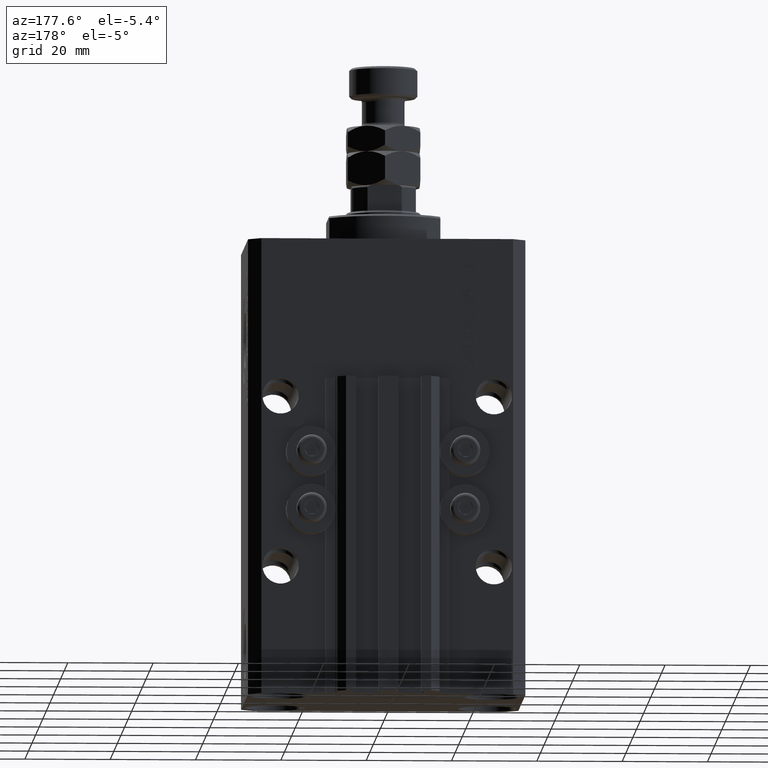
[diagram: clean part render]
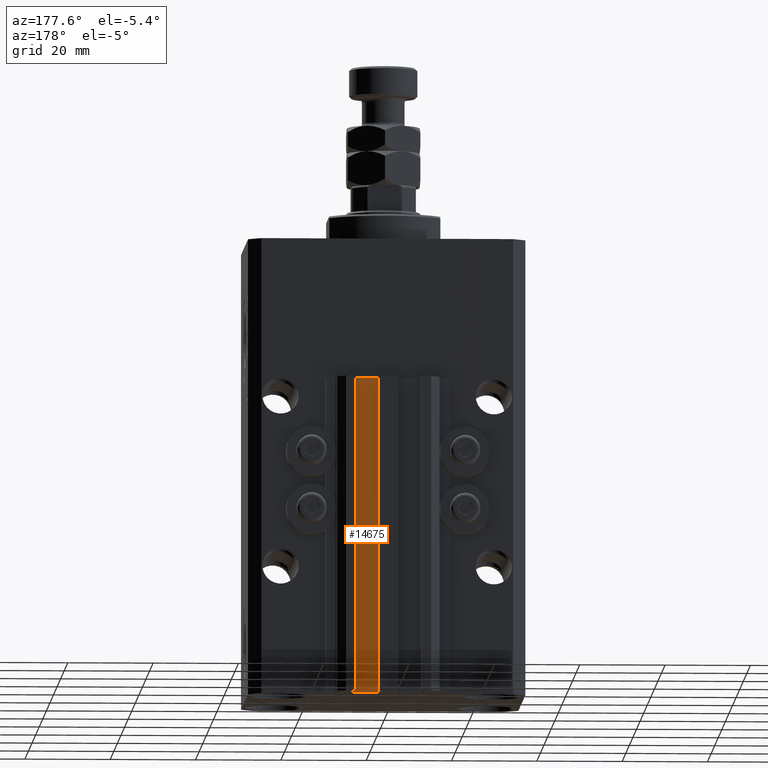
[diagram: same view with one face highlighted and labeled with its STEP entity id]
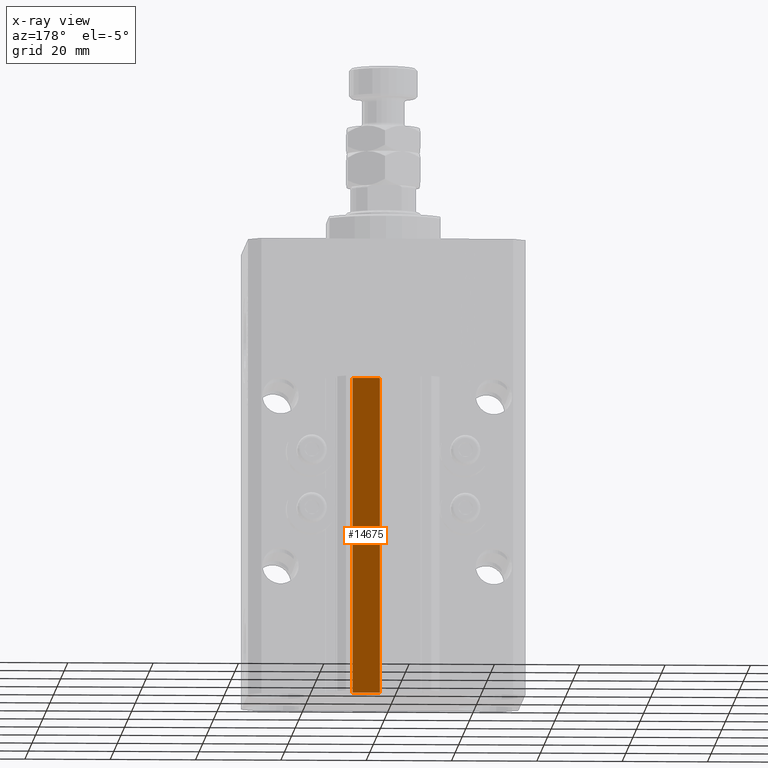
[diagram: x-ray of the same camera — body ghosted, the highlighted face saturated]
A machine part, auxiliary view. The second image highlights one B-rep face of the part: STEP entity #14675.
The next image is the same camera in x-ray: the body ghosted, the highlighted face saturated — about 0% of this face is hidden behind the body in this view.
In plain terms, the highlighted planar face has unit normal (0, 1, 0).
Its self-contained STEP definition (entity closure, byte-faithful):
#2802 = LINE ( 'NONE', #9634, #25759 ) ;
#2856 = LINE ( 'NONE', #6157, #48402 ) ;
#3077 = VERTEX_POINT ( 'NONE', #11337 ) ;
#3819 = ORIENTED_EDGE ( 'NONE', *, *, #41987, .T. ) ;
#4237 = DIRECTION ( 'NONE',  ( 0.000000000000000000, 1.000000000000000000, -0.000000000000000000 ) ) ;
#5168 = CARTESIAN_POINT ( 'NONE',  ( 8.200000000000001066, 24.49999999999949196, -33.00000000000000000 ) ) ;
#5288 = DIRECTION ( 'NONE',  ( 0.000000000000000000, 0.000000000000000000, 1.000000000000000000 ) ) ;
#6157 = CARTESIAN_POINT ( 'NONE',  ( 8.200000000000001066, 24.49999999999949196, -107.0000000000000000 ) ) ;
#6598 = ORIENTED_EDGE ( 'NONE', *, *, #22223, .F. ) ;
#6987 = DIRECTION ( 'NONE',  ( 0.000000000000000000, 0.000000000000000000, 1.000000000000000000 ) ) ;
#8528 = PLANE ( 'NONE',  #44895 ) ;
#9634 = CARTESIAN_POINT ( 'NONE',  ( 8.200000000000001066, 24.49999999999949196, -33.00000000000000000 ) ) ;
#9809 = VERTEX_POINT ( 'NONE', #5168 ) ;
#11337 = CARTESIAN_POINT ( 'NONE',  ( 1.800000000000000933, 24.49999999999949196, -107.0000000000000000 ) ) ;
#12301 = DIRECTION ( 'NONE',  ( 0.000000000000000000, 0.000000000000000000, 1.000000000000000000 ) ) ;
#13233 = VERTEX_POINT ( 'NONE', #33872 ) ;
#14295 = CARTESIAN_POINT ( 'NONE',  ( 8.200000000000001066, 24.49999999999949196, -107.0000000000000000 ) ) ;
#14675 = ADVANCED_FACE ( 'NONE', ( #43090 ), #8528, .T. ) ;
#20978 = EDGE_CURVE ( 'NONE', #13233, #3077, #2856, .T. ) ;
#21164 = LINE ( 'NONE', #24715, #39213 ) ;
#22223 = EDGE_CURVE ( 'NONE', #9809, #36165, #2802, .T. ) ;
#23918 = CARTESIAN_POINT ( 'NONE',  ( 8.200000000000001066, 24.49999999999949196, -107.0000000000000000 ) ) ;
#24715 = CARTESIAN_POINT ( 'NONE',  ( 1.800000000000000933, 24.49999999999949196, -107.0000000000000000 ) ) ;
#25759 = VECTOR ( 'NONE', #44207, 1000.000000000000000 ) ;
#27314 = EDGE_CURVE ( 'NONE', #13233, #9809, #33473, .T. ) ;
#28171 = EDGE_LOOP ( 'NONE', ( #6598, #44134, #39236, #3819 ) ) ;
#33473 = LINE ( 'NONE', #14295, #35622 ) ;
#33872 = CARTESIAN_POINT ( 'NONE',  ( 8.200000000000001066, 24.49999999999949196, -107.0000000000000000 ) ) ;
#35622 = VECTOR ( 'NONE', #6987, 1000.000000000000000 ) ;
#36165 = VERTEX_POINT ( 'NONE', #45958 ) ;
#39213 = VECTOR ( 'NONE', #5288, 1000.000000000000000 ) ;
#39236 = ORIENTED_EDGE ( 'NONE', *, *, #20978, .T. ) ;
#41987 = EDGE_CURVE ( 'NONE', #3077, #36165, #21164, .T. ) ;
#43090 = FACE_OUTER_BOUND ( 'NONE', #28171, .T. ) ;
#44134 = ORIENTED_EDGE ( 'NONE', *, *, #27314, .F. ) ;
#44207 = DIRECTION ( 'NONE',  ( -1.000000000000000000, 0.000000000000000000, 0.000000000000000000 ) ) ;
#44252 = DIRECTION ( 'NONE',  ( -1.000000000000000000, 0.000000000000000000, 0.000000000000000000 ) ) ;
#44895 = AXIS2_PLACEMENT_3D ( 'NONE', #23918, #4237, #12301 ) ;
#45958 = CARTESIAN_POINT ( 'NONE',  ( 1.800000000000000933, 24.49999999999949196, -33.00000000000000000 ) ) ;
#48402 = VECTOR ( 'NONE', #44252, 1000.000000000000000 ) ;